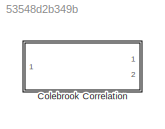
MODEL slx_53548d2b349b
KIND library
CONFIG AbsTol = auto
CONFIG FixedStep = auto
CONFIG MaxStep = auto
CONFIG MinStep = auto
CONFIG RelTol = 1e-3
CONFIG SampleTimeConstraint = Unconstrained
CONFIG Solver = ode45
CONFIG SolverMode = Auto
CONFIG SolverName = ode45
CONFIG StartTime = 0.0
CONFIG StopTime = 10.0
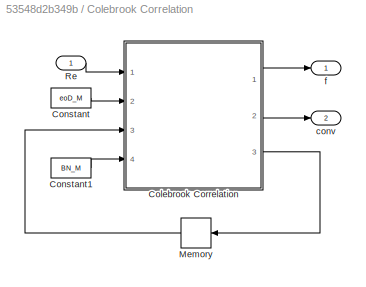
BLOCK [SubSystem] Colebrook Correlation
  Ports = [1, 2]
  RequestExecContextInheritance = off
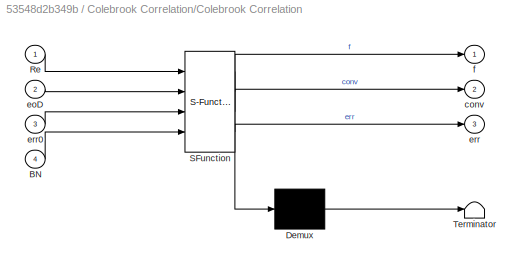
BLOCK [SubSystem] Colebrook Correlation/Colebrook Correlation
  ErrorFcn = Stateflow.Translate.translate
  PermitHierarchicalResolution = ExplicitOnly
  Ports = [4, 3]
  RequestExecContextInheritance = off
  SFBlockType = MATLAB Function
  TreatAsAtomicUnit = on
BLOCK [Demux] Colebrook Correlation/Colebrook Correlation/ Demux 
  Outputs = 1
  Ports = [1, 1]
BLOCK [S-Function] Colebrook Correlation/Colebrook Correlation/ SFunction 
  EnableBusSupport = on
  FunctionName = sf_sfun
  PortCounts = [4 4]
  Ports = [4, 4]
  Tag = Stateflow S-Function lib_Convection_ColebrookCorr 2
BLOCK [Terminator] Colebrook Correlation/Colebrook Correlation/ Terminator 
BLOCK [Inport] Colebrook Correlation/Colebrook Correlation/BN
  IconDisplay = Port number
  Port = 4
BLOCK [Inport] Colebrook Correlation/Colebrook Correlation/Re
  IconDisplay = Port number
BLOCK [Outport] Colebrook Correlation/Colebrook Correlation/conv
  IconDisplay = Port number
  Port = 2
BLOCK [Inport] Colebrook Correlation/Colebrook Correlation/eoD
  IconDisplay = Port number
  Port = 2
BLOCK [Outport] Colebrook Correlation/Colebrook Correlation/err
  IconDisplay = Port number
  Port = 3
BLOCK [Inport] Colebrook Correlation/Colebrook Correlation/err0
  IconDisplay = Port number
  Port = 3
BLOCK [Outport] Colebrook Correlation/Colebrook Correlation/f
  IconDisplay = Port number
BLOCK [Constant] Colebrook Correlation/Constant
  Value = eoD_M
BLOCK [Constant] Colebrook Correlation/Constant1
  Value = BN_M
BLOCK [Memory] Colebrook Correlation/Memory
  X0 = zeros(1,7)
BLOCK [Inport] Colebrook Correlation/Re
  IconDisplay = Port number
BLOCK [Outport] Colebrook Correlation/conv
  IconDisplay = Port number
  Port = 2
BLOCK [Outport] Colebrook Correlation/f
  IconDisplay = Port number
LINE Colebrook Correlation/Colebrook Correlation:1 -> Colebrook Correlation/f:1
LINE Colebrook Correlation/Colebrook Correlation:2 -> Colebrook Correlation/conv:1
LINE Colebrook Correlation/Colebrook Correlation:3 -> Colebrook Correlation/Memory:1
LINE Colebrook Correlation/Constant1:1 -> Colebrook Correlation/Colebrook Correlation:4
LINE Colebrook Correlation/Constant:1 -> Colebrook Correlation/Colebrook Correlation:2
LINE Colebrook Correlation/Memory:1 -> Colebrook Correlation/Colebrook Correlation:3
LINE Colebrook Correlation/Re:1 -> Colebrook Correlation/Colebrook Correlation:1
CHART Colebrook Correlation/Colebrook Correlation states=1 transitions=1
  STATE_LABEL 'eML_blk_kernel()'
  STATE_LABEL "SCRIPT:\nfunction [f,conv,err] = ColebrookCorr(Re,eoD,err0,BN)\n%#codegen\n\n%Warning/Error Check\nerr = err0;\nerrNum = 1;\n%Re is a 1-D array?\nif min(size(Re)) ~= 1 && err0(errNum) ~= 1\n    fprintf('warning in %s: Re must be a scalar or 1-D array\\n',char(BN));\n    err(errNum) = 1;\nend\nerrNum = errNum + 1;\n%eoD is a 1-D array?\nif min(size(eoD)) ~= 1 && err0(errNum) ~= 1\n    fprintf('warning in %s: eoD_M...<+2288ch>"
